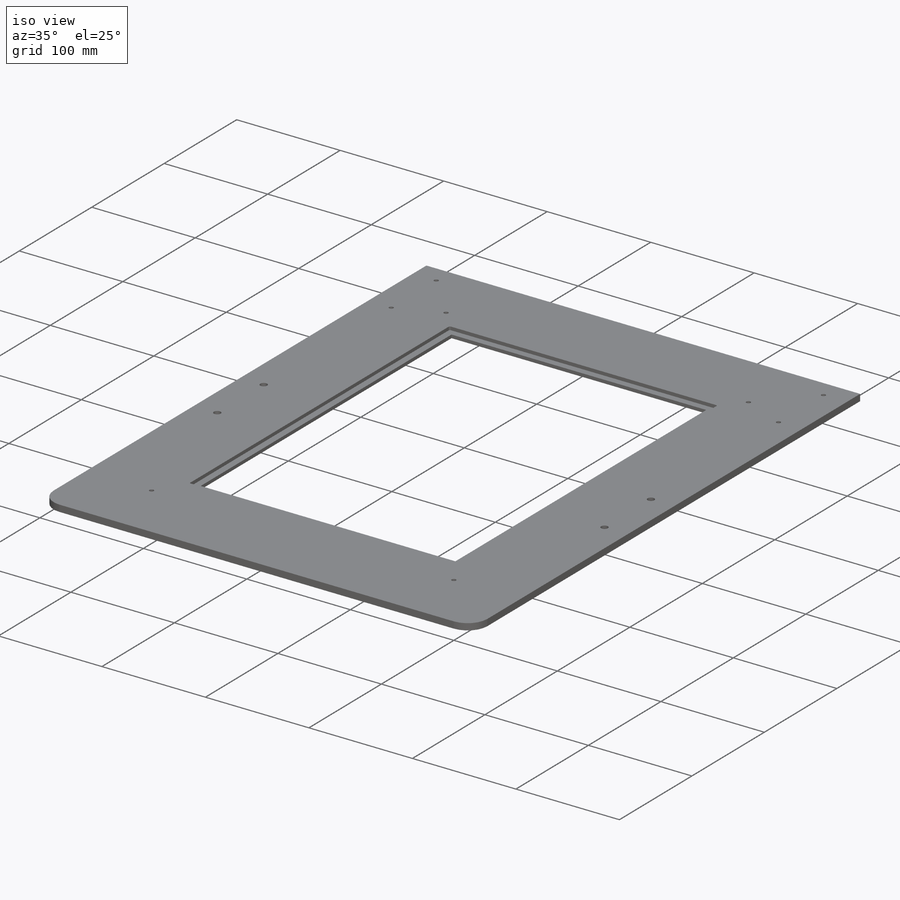
[diagram: iso view]
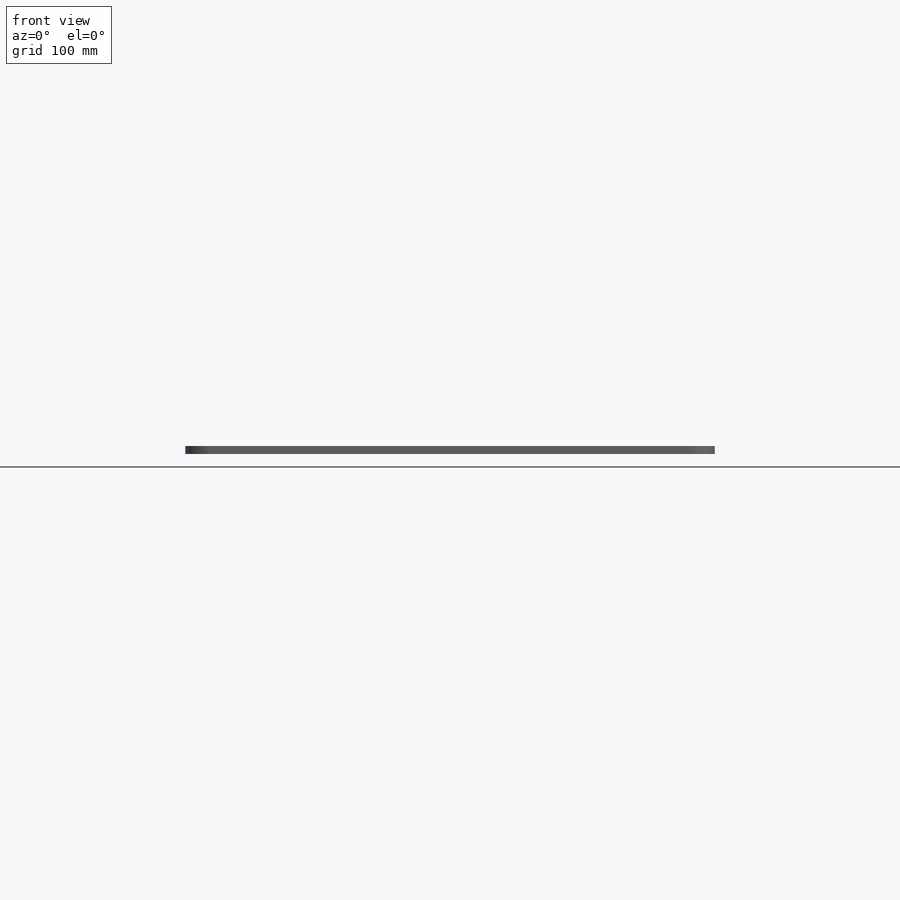
[diagram: front view]
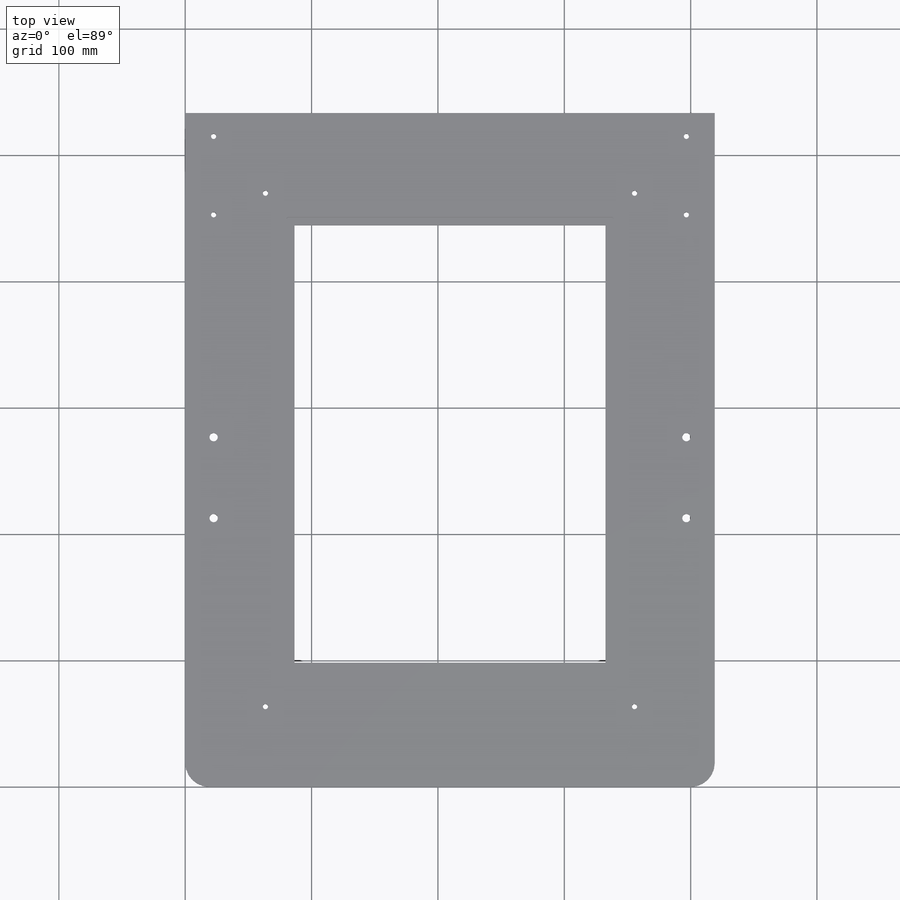
[diagram: top view]
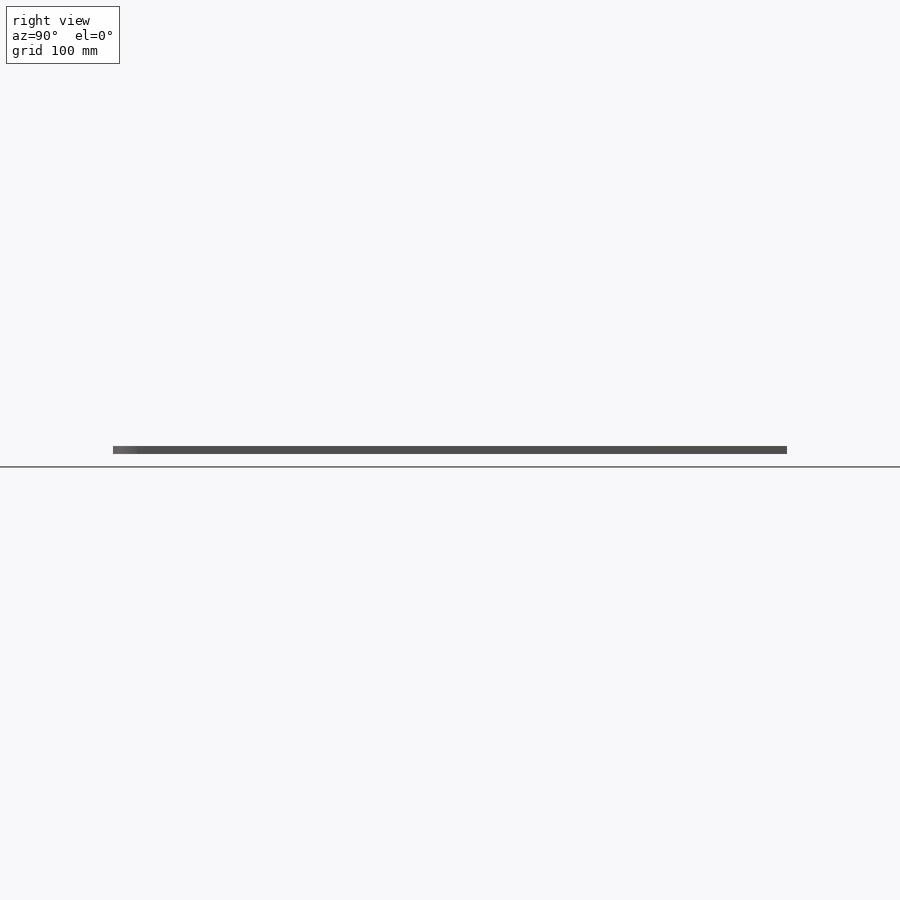
[diagram: right view]
SOLIDWORKS PART (.sldprt)
format: sldprt  version: not decoded by parser v0  size: 410,112 bytes
history: native  units: mm
features: thread x12, sketch x11, hole x3, cut_extrude x2, fillet x2, material x1, extrude x1, plane x1 (+11 scaffold rows collapsed)
feature tree (44):
  scaffold x11  (default folders/planes/origin — collapsed)
  material  "6061 Alloy"
  sketch  "Sketch1"  dims[D1=246.0625mm D2=346.075mm D3=88.9mm D4=533.4mm D5=419.1mm]
  extrude  "Overall shape"  Depth=6.35mm
  sketch  "Sketch5"  dims[D1=6.35mm]
  cut_extrude  "Glass inset cut"  Depth=3.2mm
  fillet  "Glass inset fillets"  Radius=1.27mm
  plane  "Center plane"
  sketch  "Sketch8"  dims[c1.D3=~4.710729mm c1.D4=3.8354mm c1.D9=3.8354mm c1.D1=~19.22145mm c1.D2=~19.22145mm c2.D3=7.8232mm c2.D5=49.4665mm c2.D6=57.6072mm c2.D7=100.1522mm c2.D8=106.6546mm c2.D10=7.8232mm c2.D11=106.6546mm c2.D12=100.1522mm c2.D13=57.6072mm c2.D14=49.4665mm]
  cut_extrude  "Y axis bracket holes"  [1 undecoded]
  fillet  "Fillet1"  Radius=19.05mm
  sketch  "Sketch12"  dims[D1=63.5mm D2=63.5mm D3=63.5mm D4=63.5mm]
  hole  "#10-32 Tapped Hole3"  [1 undecoded]
  sketch  "Sketch14"
  thread  "Hole Thread1"  Diameter=4.826mm  [1 undecoded]
  thread  "Hole Thread2"  Diameter=4.826mm  [1 undecoded]
  thread  "Hole Thread3"  Diameter=4.826mm  [1 undecoded]
  thread  "Hole Thread4"  Diameter=4.826mm  [1 undecoded]
  sketch  "Sketch13"  dims[hole-wizard template sketch: 61 standard entries collapsed; hole parameters above]
  sketch  "Sketch19"  dims[D1=80.5815mm D2=18.5293mm D3=98.9965mm D4=34.9504mm D5=22.479mm D6=22.479mm D7=355.6mm D8=44.958mm]
  hole  "#10-32 Tapped Hole7"  [1 undecoded]
  sketch  "Sketch21"
  thread  "Hole Thread5"  Diameter=4.826mm  [1 undecoded]
  thread  "Hole Thread6"  Diameter=4.826mm  [1 undecoded]
  thread  "Hole Thread7"  Diameter=4.826mm  [1 undecoded]
  thread  "Hole Thread8"  Diameter=4.826mm  [1 undecoded]
  sketch  "Sketch20"  dims[hole-wizard template sketch: 61 standard entries collapsed; hole parameters above]
  hole  "5/16-18 Tapped Hole1"  [1 undecoded]
  sketch  "Sketch23"
  thread  "Hole Thread9"  Diameter=7.9375mm  [1 undecoded]
  thread  "Hole Thread10"  Diameter=7.9375mm  [1 undecoded]
  thread  "Hole Thread11"  Diameter=7.9375mm  [1 undecoded]
  thread  "Hole Thread12"  Diameter=7.9375mm  [1 undecoded]
  sketch  "Sketch22"  dims[hole-wizard template sketch: 59 standard entries collapsed; hole parameters kept: c18.Thru Tap Drill Dia.=6.5278mm c18.Thru Tap Drill Depth=6.35mm]
decode coverage: 24 of 31 modeling features carry decoded parameters
note: ~ marks probable driven/reference dimensions
note: 16 parameter values undecoded
summary: no parameter record found for 4 features
note: suppression state not decoded; provenance and decode notes live in map.json
